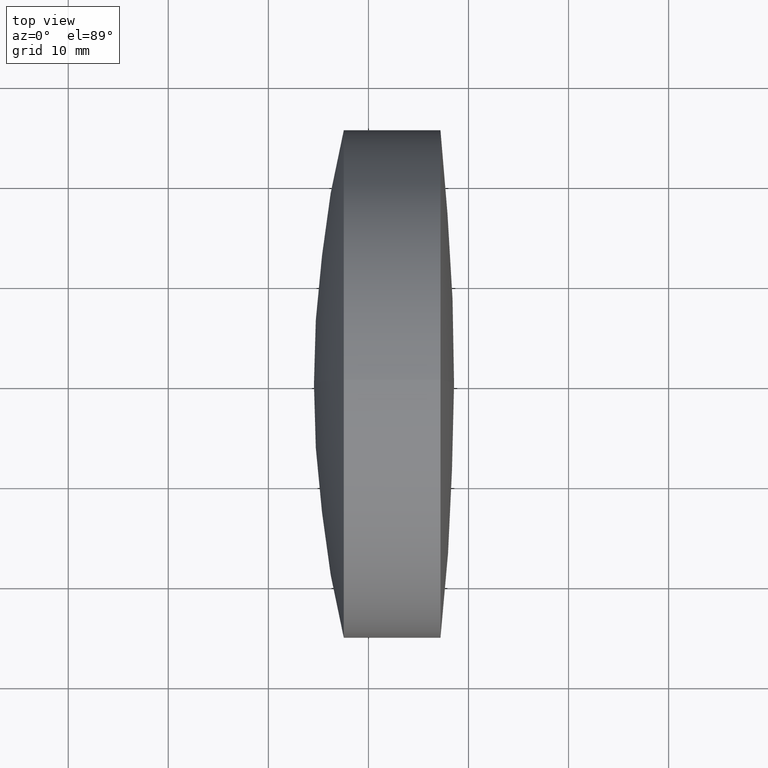
[diagram: clean part render]
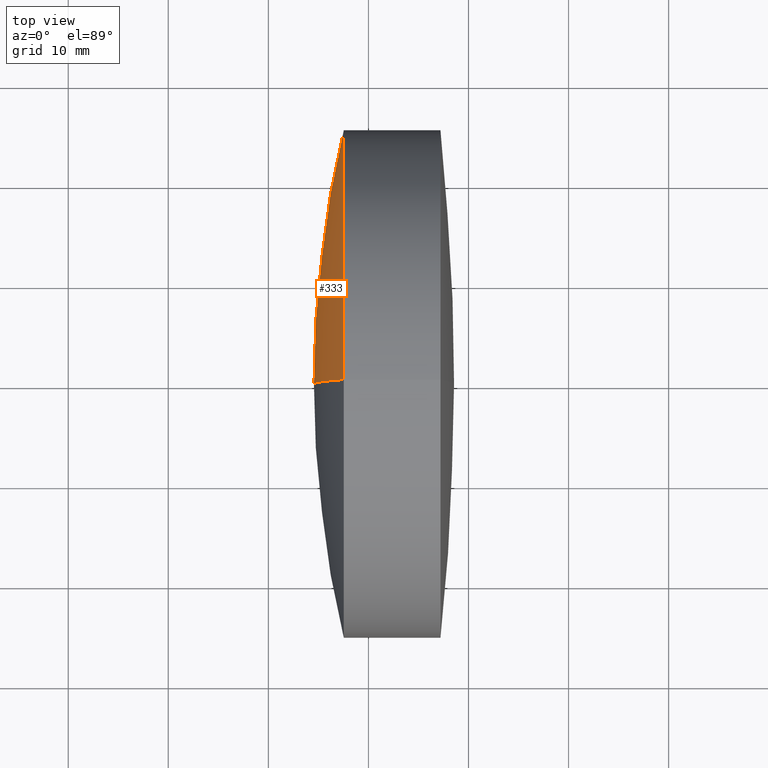
[diagram: same view with one face highlighted and labeled with its STEP entity id]
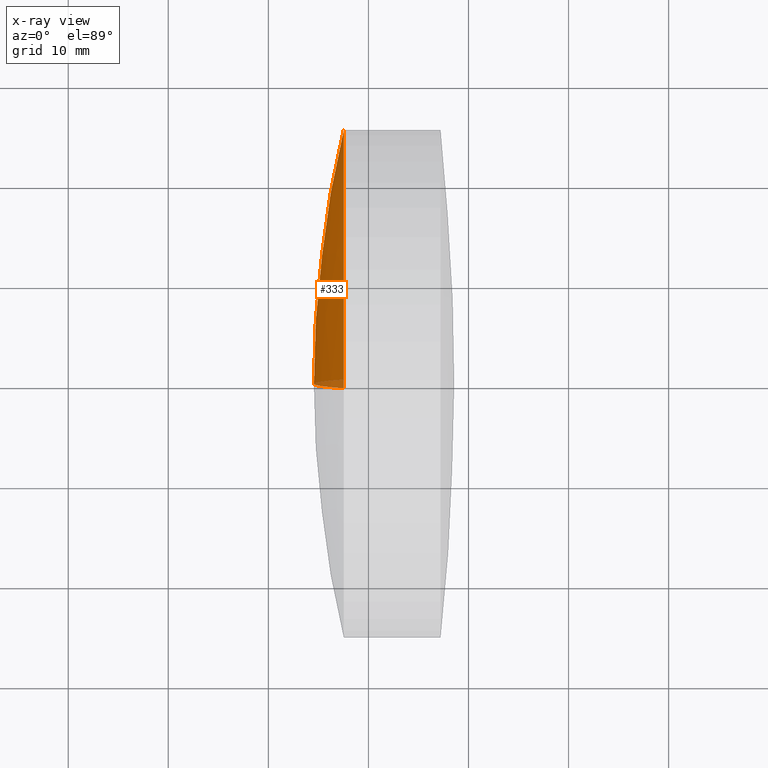
[diagram: x-ray of the same camera — body ghosted, the highlighted face saturated]
A machine part, top view. The second image highlights one B-rep face of the part: STEP entity #333.
The next image is the same camera in x-ray: the body ghosted, the highlighted face saturated — about 3% of this face is hidden behind the body in this view.
In plain terms, the highlighted spherical surface has radius 109.7 mm.
Its self-contained STEP definition (entity closure, byte-faithful):
#43 = DIRECTION ( 'NONE',  ( 0.0000000000000000000, -1.000000000000000000, 0.0000000000000000000 ) ) ;
#55 = AXIS2_PLACEMENT_3D ( 'NONE', #347, #324, #190 ) ;
#61 = CIRCLE ( 'NONE', #168, 109.7000000000000300 ) ;
#68 = CARTESIAN_POINT ( 'NONE',  ( 337.5385320495342400, 3.110602869834276900E-015, -25.40000000000000600 ) ) ;
#69 = DIRECTION ( 'NONE',  ( 0.0000000000000000000, 0.0000000000000000000, -1.000000000000000000 ) ) ;
#89 = AXIS2_PLACEMENT_3D ( 'NONE', #292, #43, #69 ) ;
#107 = DIRECTION ( 'NONE',  ( 0.0000000000000000000, -1.224646799147353200E-016, 1.000000000000000000 ) ) ;
#142 = EDGE_LOOP ( 'NONE', ( #170, #273, #314 ) ) ;
#146 = VERTEX_POINT ( 'NONE', #155 ) ;
#155 = CARTESIAN_POINT ( 'NONE',  ( 334.5574619542142000, 0.0000000000000000000, 3.451904973311803600E-015 ) ) ;
#162 = DIRECTION ( 'NONE',  ( 0.0000000000000000000, 0.0000000000000000000, 1.000000000000000000 ) ) ;
#164 = DIRECTION ( 'NONE',  ( 0.0000000000000000000, 1.000000000000000000, 0.0000000000000000000 ) ) ;
#168 = AXIS2_PLACEMENT_3D ( 'NONE', #327, #329, #107 ) ;
#169 = CIRCLE ( 'NONE', #89, 109.7000000000000300 ) ;
#170 = ORIENTED_EDGE ( 'NONE', *, *, #266, .T. ) ;
#188 = CARTESIAN_POINT ( 'NONE',  ( 337.5385320495342400, 0.0000000000000000000, 25.39999999999999900 ) ) ;
#190 = DIRECTION ( 'NONE',  ( 0.0000000000000000000, 0.0000000000000000000, 1.000000000000000000 ) ) ;
#191 = FACE_OUTER_BOUND ( 'NONE', #142, .T. ) ;
#195 = CARTESIAN_POINT ( 'NONE',  ( 444.2574619542142500, 0.0000000000000000000, -3.265282720011431000E-015 ) ) ;
#222 = CIRCLE ( 'NONE', #55, 25.39999999999999500 ) ;
#250 = SPHERICAL_SURFACE ( 'NONE', #263, 109.7000000000000300 ) ;
#263 = AXIS2_PLACEMENT_3D ( 'NONE', #195, #164, #162 ) ;
#266 = EDGE_CURVE ( 'NONE', #331, #321, #222, .T. ) ;
#273 = ORIENTED_EDGE ( 'NONE', *, *, #315, .T. ) ;
#279 = EDGE_CURVE ( 'NONE', #331, #146, #169, .T. ) ;
#292 = CARTESIAN_POINT ( 'NONE',  ( 444.2574619542142500, 0.0000000000000000000, -3.265282720011431000E-015 ) ) ;
#314 = ORIENTED_EDGE ( 'NONE', *, *, #279, .F. ) ;
#315 = EDGE_CURVE ( 'NONE', #321, #146, #61, .T. ) ;
#321 = VERTEX_POINT ( 'NONE', #68 ) ;
#324 = DIRECTION ( 'NONE',  ( -1.000000000000000000, -0.0000000000000000000, -0.0000000000000000000 ) ) ;
#327 = CARTESIAN_POINT ( 'NONE',  ( 444.2574619542142500, 0.0000000000000000000, -3.265282720011431000E-015 ) ) ;
#329 = DIRECTION ( 'NONE',  ( -0.0000000000000000000, 1.000000000000000000, 1.224646799147353200E-016 ) ) ;
#331 = VERTEX_POINT ( 'NONE', #188 ) ;
#333 = ADVANCED_FACE ( 'NONE', ( #191 ), #250, .T. ) ;
#347 = CARTESIAN_POINT ( 'NONE',  ( 337.5385320495342400, 0.0000000000000000000, 0.0000000000000000000 ) ) ;